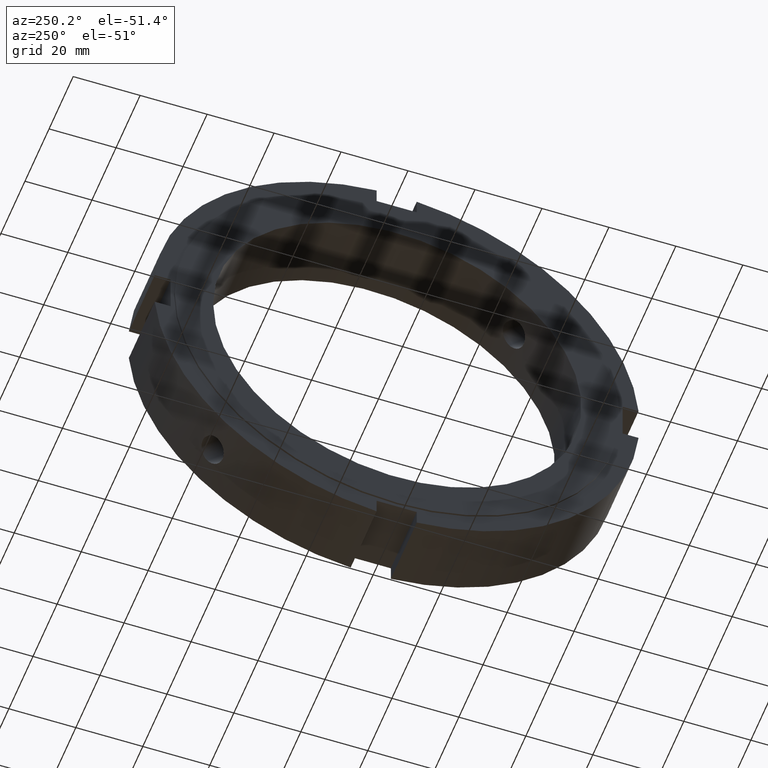
[diagram: clean part render]
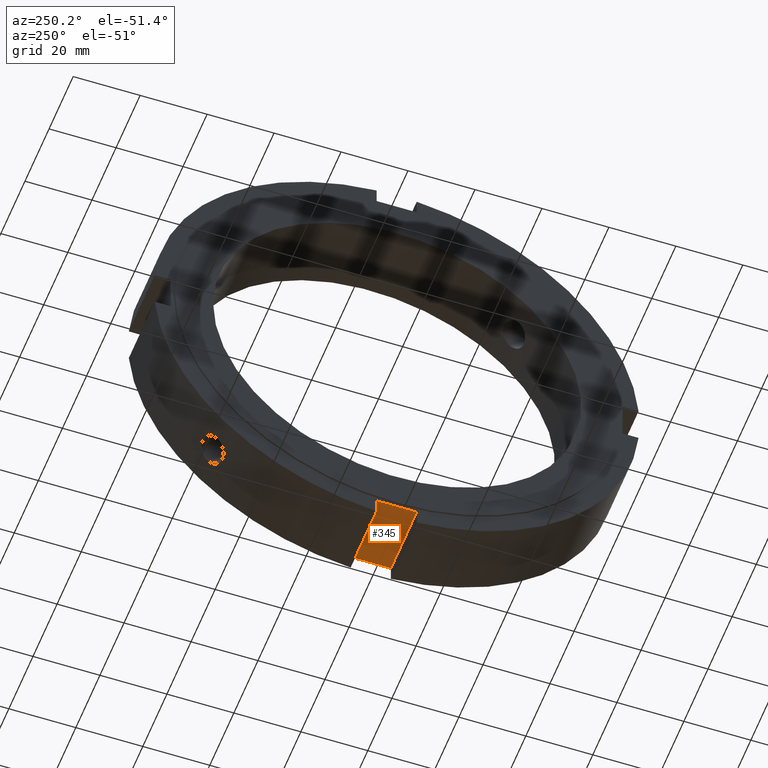
[diagram: same view with one face highlighted and labeled with its STEP entity id]
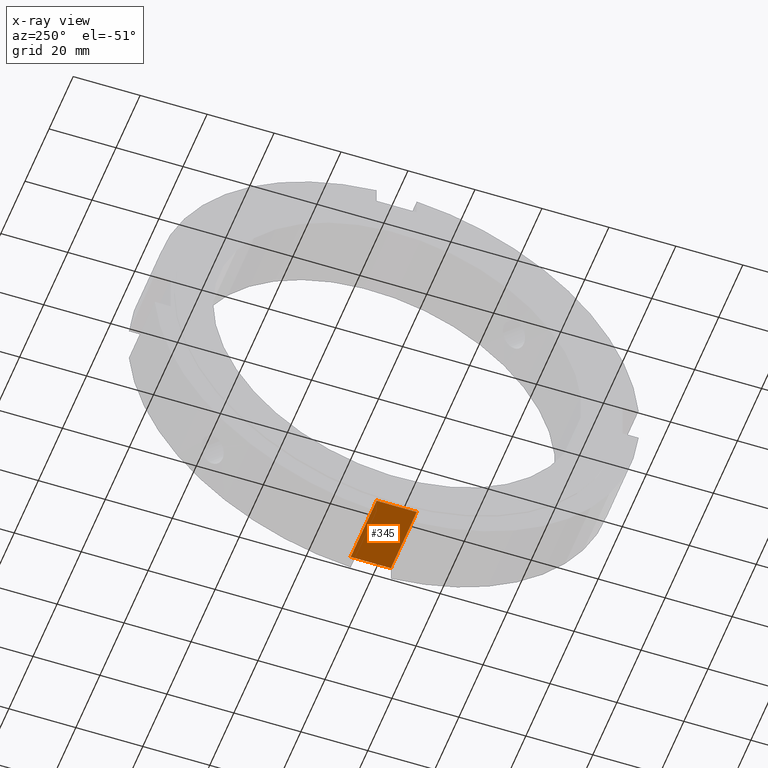
[diagram: x-ray of the same camera — body ghosted, the highlighted face saturated]
A machine part, auxiliary view. The second image highlights one B-rep face of the part: STEP entity #345.
The next image is the same camera in x-ray: the body ghosted, the highlighted face saturated — about 0% of this face is hidden behind the body in this view.
In plain terms, the highlighted planar face has unit normal (0, 0, 1).
Its self-contained STEP definition (entity closure, byte-faithful):
#249=CARTESIAN_POINT('',(0.499999999999980,-6.000000000000010,-67.500000000000000));
#250=VERTEX_POINT('',#249);
#259=CARTESIAN_POINT('',(21.999999999999986,-6.000000000000010,-67.500000000000000));
#260=VERTEX_POINT('',#259);
#261=CARTESIAN_POINT('',(21.999999999999986,-6.000000000000010,-67.500000000000000));
#262=DIRECTION('',(-1.0,0.0,0.0));
#263=VECTOR('',#262,21.500000000000004);
#264=LINE('',#261,#263);
#265=EDGE_CURVE('',#260,#250,#264,.T.);
#291=CARTESIAN_POINT('',(0.499999999999980,5.999999999999986,-67.500000000000000));
#292=VERTEX_POINT('',#291);
#307=CARTESIAN_POINT('',(21.999999999999986,5.999999999999986,-67.500000000000000));
#308=VERTEX_POINT('',#307);
#315=CARTESIAN_POINT('',(21.999999999999986,5.999999999999986,-67.500000000000000));
#316=DIRECTION('',(-1.0,0.0,0.0));
#317=VECTOR('',#316,21.500000000000004);
#318=LINE('',#315,#317);
#319=EDGE_CURVE('',#308,#292,#318,.T.);
#324=CARTESIAN_POINT('',(21.999999999999986,5.999999999999986,-67.500000000000000));
#325=DIRECTION('',(0.0,0.0,1.0));
#326=DIRECTION('',(0.0,-1.0,0.0));
#327=AXIS2_PLACEMENT_3D('',#324,#325,#326);
#328=PLANE('',#327);
#329=CARTESIAN_POINT('',(0.499999999999980,5.999999999999986,-67.500000000000000));
#330=DIRECTION('',(0.0,-1.0,0.0));
#331=VECTOR('',#330,11.999999999999993);
#332=LINE('',#329,#331);
#333=EDGE_CURVE('',#292,#250,#332,.T.);
#334=ORIENTED_EDGE('',*,*,#333,.F.);
#335=ORIENTED_EDGE('',*,*,#319,.F.);
#336=CARTESIAN_POINT('',(21.999999999999986,-6.000000000000014,-67.499999999999986));
#337=DIRECTION('',(0.0,1.0,0.0));
#338=VECTOR('',#337,12.0);
#339=LINE('',#336,#338);
#340=EDGE_CURVE('',#260,#308,#339,.T.);
#341=ORIENTED_EDGE('',*,*,#340,.F.);
#342=ORIENTED_EDGE('',*,*,#265,.T.);
#343=EDGE_LOOP('',(#334,#335,#341,#342));
#344=FACE_OUTER_BOUND('',#343,.T.);
#345=ADVANCED_FACE('',(#344),#328,.F.);